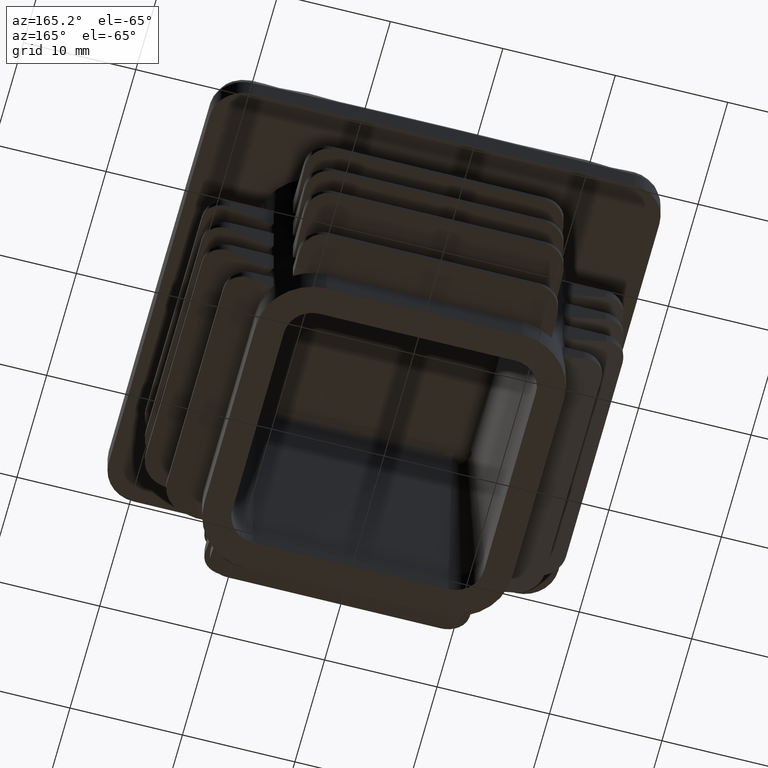
[diagram: clean part render]
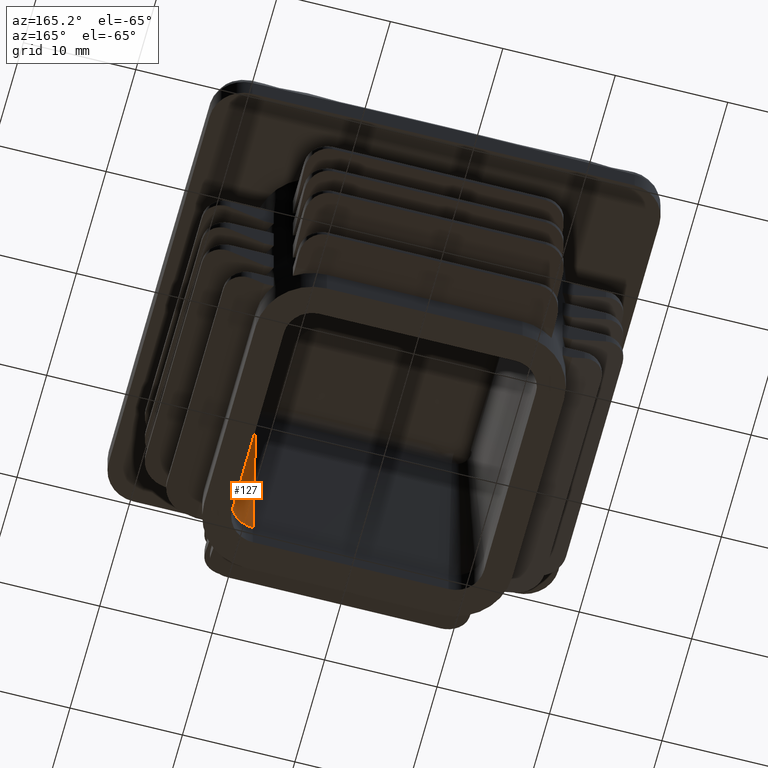
[diagram: same view with one face highlighted and labeled with its STEP entity id]
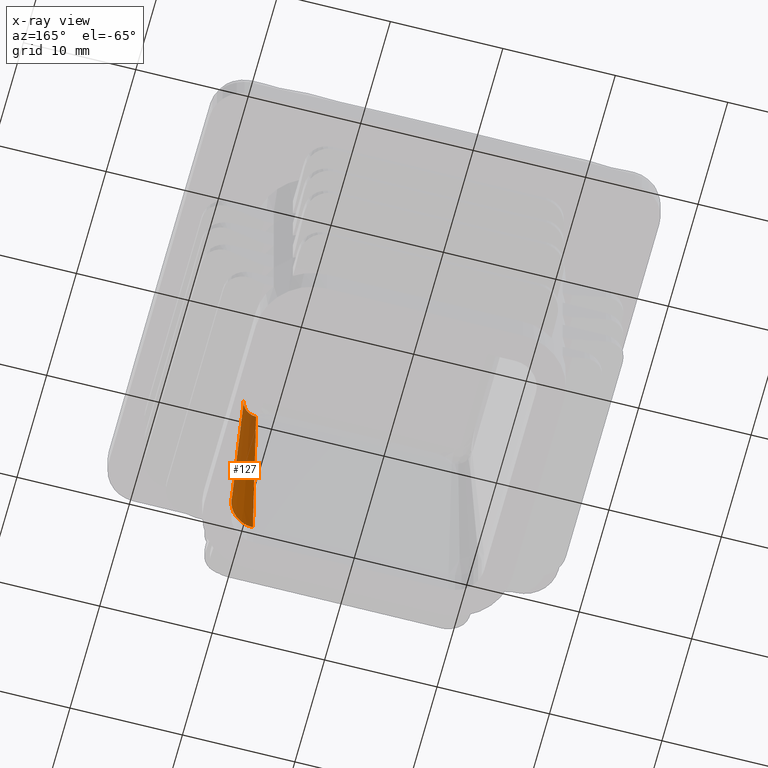
[diagram: x-ray of the same camera — body ghosted, the highlighted face saturated]
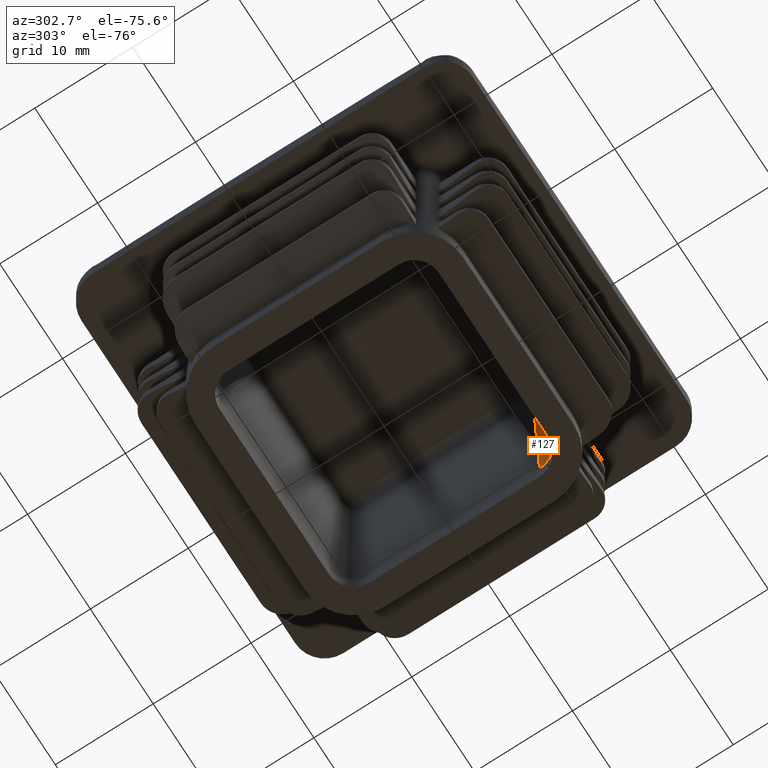
[diagram: same view with one face highlighted and labeled with its STEP entity id]
A machine part, auxiliary view. The second image highlights one B-rep face of the part: STEP entity #127.
The next image is the same camera in x-ray: the body ghosted, the highlighted face saturated — about 44% of this face is hidden behind the body in this view.
A second angle (auxiliary view) of the same face is appended — the face is thin or edge-on in the first view.
In plain terms, the highlighted conical surface has half-angle 3 deg.
Its self-contained STEP definition (entity closure, byte-faithful):
#127 = ADVANCED_FACE( '', ( #471 ), #472, .F. );
#471 = FACE_OUTER_BOUND( '', #2058, .T. );
#472 = CONICAL_SURFACE( '', #2059, 2.50000000000000, 0.0523598775598299 );
#2058 = EDGE_LOOP( '', ( #3858, #3859, #3860, #3861 ) );
#2059 = AXIS2_PLACEMENT_3D( '', #3862, #3863, #3864 );
#3858 = ORIENTED_EDGE( '', *, *, #5825, .F. );
#3859 = ORIENTED_EDGE( '', *, *, #5838, .T. );
#3860 = ORIENTED_EDGE( '', *, *, #5836, .T. );
#3861 = ORIENTED_EDGE( '', *, *, #5803, .F. );
#3862 = CARTESIAN_POINT( '', ( 8.70000000000000, -8.70000000000000, 3.00000000000000 ) );
#3863 = DIRECTION( '', ( 0.000000000000000, 0.000000000000000, -1.00000000000000 ) );
#3864 = DIRECTION( '', ( 1.00000000000000, 0.000000000000000, 0.000000000000000 ) );
#5803 = EDGE_CURVE( '', #6653, #6656, #6657, .T. );
#5825 = EDGE_CURVE( '', #6690, #6653, #6692, .T. );
#5836 = EDGE_CURVE( '', #6708, #6656, #6709, .T. );
#5838 = EDGE_CURVE( '', #6690, #6708, #6711, .T. );
#6653 = VERTEX_POINT( '', #8903 );
#6656 = VERTEX_POINT( '', #8908 );
#6657 = CIRCLE( '', #8909, 2.50000000000000 );
#6690 = VERTEX_POINT( '', #9131 );
#6692 = LINE( '', #9145, #9146 );
#6708 = VERTEX_POINT( '', #9311 );
#6709 = LINE( '', #9312, #9313 );
#6711 = B_SPLINE_CURVE_WITH_KNOTS( '', 3, ( #9327, #9328, #9329, #9330, #9331, #9332, #9333, #9334, #9335, #9336, #9337, #9338, #9339, #9340, #9341, #9342, #9343, #9344, #9345, #9346, #9347, #9348, #9349, #9350, #9351, #9352, #9353, #9354, #9355, #9356, #9357, #9358, #9359, #9360, #9361, #9362, #9363, #9364, #9365, #9366, #9367 ), .UNSPECIFIED., .F., .F., ( 4, 1, 1, 2, 2, 2, 2, 1, 2, 1, 2, 2, 1, 1, 2, 2, 2, 2, 1, 2, 2, 2, 1, 1, 4 ), ( 0.000000000000000, 0.000140123062595246, 0.000280246125190491, 0.000420369187785737, 0.000455399953434547, 0.000490430719083357, 0.000560492250380973, 0.000700615312976199, 0.000840738375571425, 0.000910799906869039, 0.000945830672517845, 0.000980861438166652, 0.00112098450076188, 0.00126110756335711, 0.00140123062595233, 0.00143626139160114, 0.00147129215724995, 0.00154135368854757, 0.00168147675114280, 0.00182159981373803, 0.00189166134503565, 0.00192669211068445, 0.00196172287633326, 0.00210184593892848, 0.00224196900152370 ), .UNSPECIFIED. );
#8903 = CARTESIAN_POINT( '', ( 8.70000000000000, -11.2000000000000, 3.00000000000000 ) );
#8908 = CARTESIAN_POINT( '', ( 11.2000000000000, -8.70000000000001, 3.00000000000000 ) );
#8909 = AXIS2_PLACEMENT_3D( '', #10856, #10857, #10858 );
#9131 = CARTESIAN_POINT( '', ( 8.70000000000000, -10.1349974489749, 23.3214592488889 ) );
#9145 = CARTESIAN_POINT( '', ( 8.70000000000000, -11.2000000000000, 3.00000000000000 ) );
#9146 = VECTOR( '', #10874, 1000.00000000000 );
#9311 = CARTESIAN_POINT( '', ( 10.1349974489749, -8.70000000000001, 23.3214592488889 ) );
#9312 = CARTESIAN_POINT( '', ( 11.2000000000000, -8.70000000000001, 3.00000000000000 ) );
#9313 = VECTOR( '', #10880, 1000.00000000000 );
#9327 = CARTESIAN_POINT( '', ( 8.70000000000000, -10.1349974489749, 23.3214592488889 ) );
#9328 = CARTESIAN_POINT( '', ( 8.74737746027476, -10.1350143593327, 23.3211365800402 ) );
#9329 = CARTESIAN_POINT( '', ( 8.84133793643728, -10.1303662434467, 23.3205285714518 ) );
#9330 = CARTESIAN_POINT( '', ( 8.97997761141255, -10.1098332476182, 23.3197246393029 ) );
#9331 = CARTESIAN_POINT( '', ( 9.07087955117128, -10.0871601173748, 23.3192602666127 ) );
#9332 = CARTESIAN_POINT( '', ( 9.12720596669823, -10.0701176023943, 23.3189929071059 ) );
#9333 = CARTESIAN_POINT( '', ( 9.13844682870502, -10.0665651774244, 23.3189405815189 ) );
#9334 = CARTESIAN_POINT( '', ( 9.16087920596270, -10.0591695100037, 23.3188382464904 ) );
#9335 = CARTESIAN_POINT( '', ( 9.17208572908142, -10.0553208123381, 23.3187881720383 ) );
#9336 = CARTESIAN_POINT( '', ( 9.20551028602086, -10.0433766171703, 23.3186419866389 ) );
#9337 = CARTESIAN_POINT( '', ( 9.22750645559707, -10.0348949715013, 23.3185500150225 ) );
#9338 = CARTESIAN_POINT( '', ( 9.29265176219693, -10.0079249640736, 23.3182902215831 ) );
#9339 = CARTESIAN_POINT( '', ( 9.37726763128208, -9.96790533310256, 23.3179867441627 ) );
#9340 = CARTESIAN_POINT( '', ( 9.45747762962030, -9.91991695673826, 23.3177674878348 ) );
#9341 = CARTESIAN_POINT( '', ( 9.51596613263317, -9.88090701986096, 23.3176349451733 ) );
#9342 = CARTESIAN_POINT( '', ( 9.54479240625968, -9.86064606935418, 23.3175766626933 ) );
#9343 = CARTESIAN_POINT( '', ( 9.57298160504272, -9.83923286371742, 23.3175305560903 ) );
#9344 = CARTESIAN_POINT( '', ( 9.59163119302412, -9.82469837215939, 23.3175025553808 ) );
#9345 = CARTESIAN_POINT( '', ( 9.60089241433322, -9.81729463406183, 23.3174899163858 ) );
#9346 = CARTESIAN_POINT( '', ( 9.64659117772425, -9.77982562928054, 23.3174339182116 ) );
#9347 = CARTESIAN_POINT( '', ( 9.71618911561749, -9.71673265437733, 23.3173896567624 ) );
#9348 = CARTESIAN_POINT( '', ( 9.81035039440602, -9.61295529820768, 23.3174550870403 ) );
#9349 = CARTESIAN_POINT( '', ( 9.86631693936797, -9.53769284816212, 23.3175863837193 ) );
#9350 = CARTESIAN_POINT( '', ( 9.89911175417381, -9.48870379680104, 23.3176965779630 ) );
#9351 = CARTESIAN_POINT( '', ( 9.90556124185749, -9.47880825208060, 23.3177200268769 ) );
#9352 = CARTESIAN_POINT( '', ( 9.91823877963030, -9.45881947342978, 23.3177697769496 ) );
#9353 = CARTESIAN_POINT( '', ( 9.92445760433080, -9.44874006065326, 23.3177960468364 ) );
#9354 = CARTESIAN_POINT( '', ( 9.94268322897037, -9.41836778752111, 23.3178787008201 ) );
#9355 = CARTESIAN_POINT( '', ( 9.95428912547669, -9.39789454820611, 23.3179390408190 ) );
#9356 = CARTESIAN_POINT( '', ( 9.98750303731900, -9.33581196791098, 23.3181354875938 ) );
#9357 = CARTESIAN_POINT( '', ( 10.0275190919236, -9.25127069386846, 23.3184384816954 ) );
#9358 = CARTESIAN_POINT( '', ( 10.0591223692444, -9.16325230868780, 23.3188224138951 ) );
#9359 = CARTESIAN_POINT( '', ( 10.0796257292114, -9.09591629068009, 23.3191411484421 ) );
#9360 = CARTESIAN_POINT( '', ( 10.0859260548016, -9.07325018935532, 23.3192525332956 ) );
#9361 = CARTESIAN_POINT( '', ( 10.0945608425170, -9.03891389759970, 23.3194274612581 ) );
#9362 = CARTESIAN_POINT( '', ( 10.0973043279756, -9.02740672877668, 23.3194871088070 ) );
#9363 = CARTESIAN_POINT( '', ( 10.1025107580528, -9.00430215295900, 23.3196089291108 ) );
#9364 = CARTESIAN_POINT( '', ( 10.1147925582190, -8.94645846178275, 23.3199190413421 ) );
#9365 = CARTESIAN_POINT( '', ( 10.1303653577945, -8.84160784616155, 23.3205267399621 ) );
#9366 = CARTESIAN_POINT( '', ( 10.1350143593355, -8.74737746796424, 23.3211365799878 ) );
#9367 = CARTESIAN_POINT( '', ( 10.1349974489749, -8.70000000000001, 23.3214592488889 ) );
#10856 = CARTESIAN_POINT( '', ( 8.70000000000000, -8.70000000000000, 3.00000000000000 ) );
#10857 = DIRECTION( '', ( 0.000000000000000, 0.000000000000000, 1.00000000000000 ) );
#10858 = DIRECTION( '', ( -1.38777878078145E-015, -1.00000000000000, 0.000000000000000 ) );
#10874 = DIRECTION( '', ( -7.26307295458637E-017, -0.0523359562429438, -0.998629534754574 ) );
#10880 = DIRECTION( '', ( 0.0523359562429438, -1.03214474543540E-032, -0.998629534754574 ) );